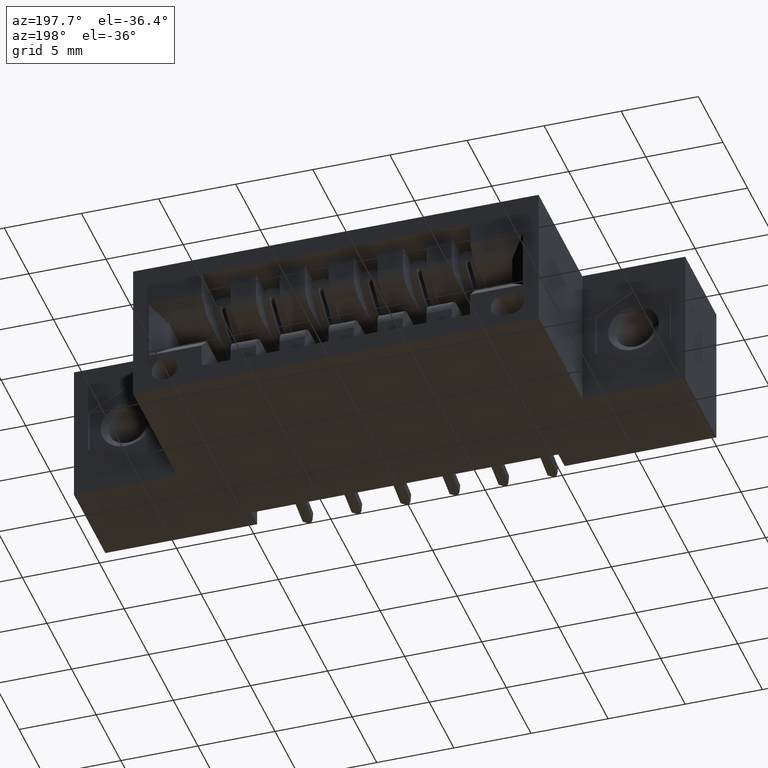
[diagram: clean part render]
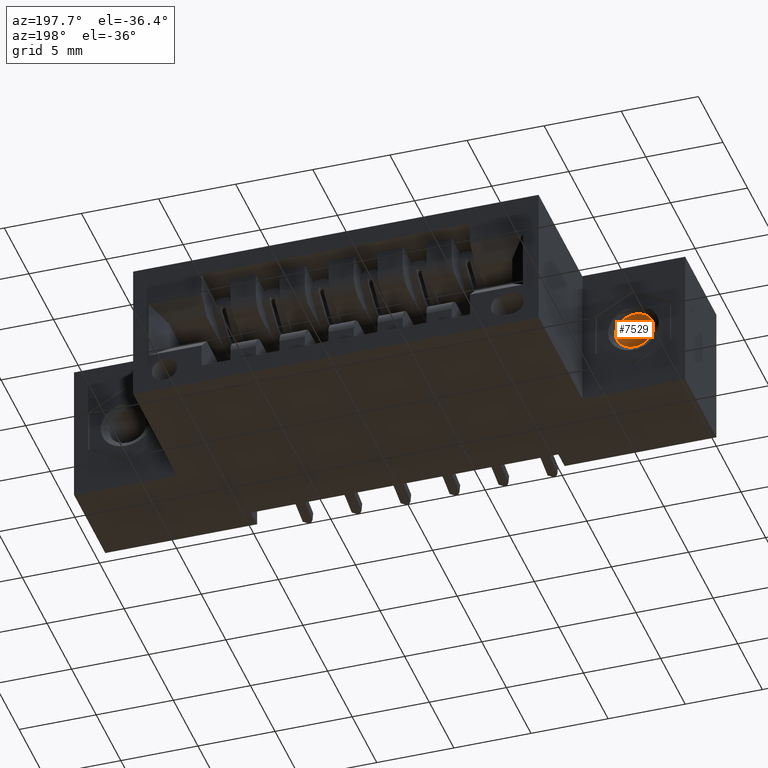
[diagram: same view with one face highlighted and labeled with its STEP entity id]
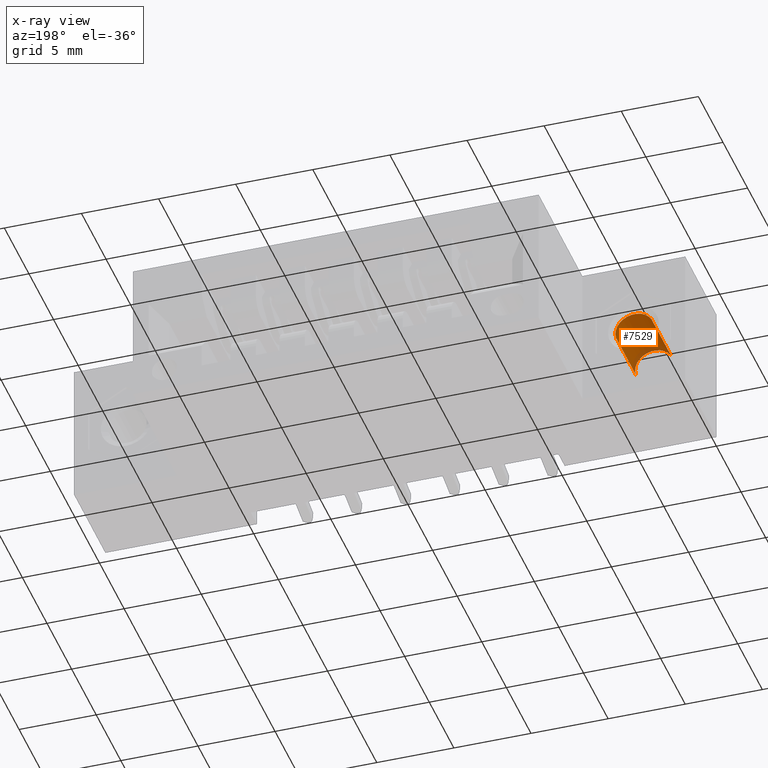
[diagram: x-ray of the same camera — body ghosted, the highlighted face saturated]
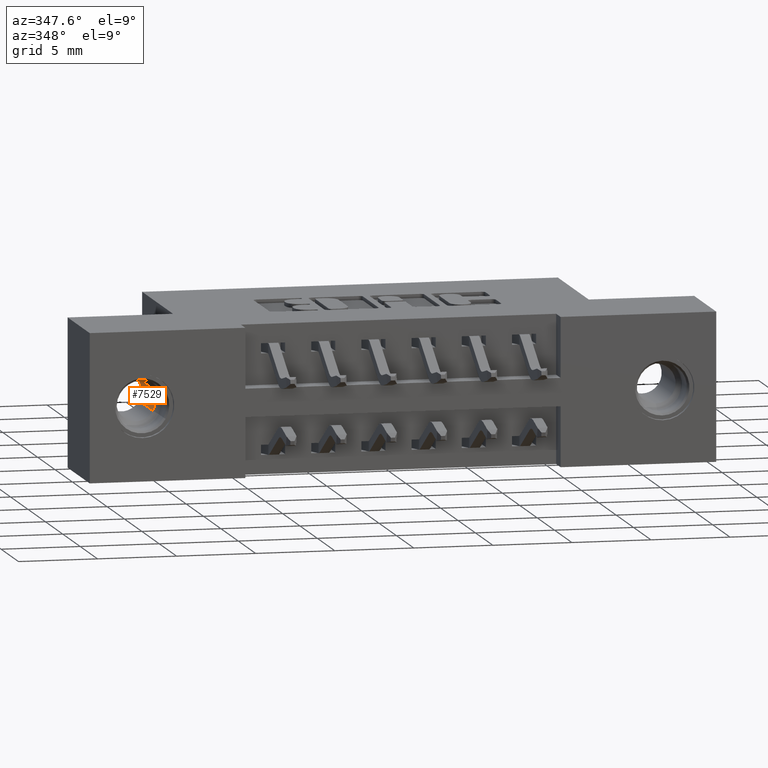
[diagram: same view with one face highlighted and labeled with its STEP entity id]
A machine part, auxiliary view. The second image highlights one B-rep face of the part: STEP entity #7529.
The next image is the same camera in x-ray: the body ghosted, the highlighted face saturated — about 12% of this face is hidden behind the body in this view.
A second angle (auxiliary view) of the same face is appended — the face is thin or edge-on in the first view.
In plain terms, the highlighted cylindrical surface (edge-blend (fillet) strip) has radius 1.25 mm, axis along (0, 1, 0).
Its self-contained STEP definition (entity closure, byte-faithful):
#390 = DIRECTION ( 'NONE',  ( 0.0000000000000000000, -1.000000000000000000, 0.0000000000000000000 ) ) ;
#496 = CARTESIAN_POINT ( 'NONE',  ( 2.310085507431578100E-017, 0.0000000000000000000, 0.04921259842519700600 ) ) ;
#645 = CARTESIAN_POINT ( 'NONE',  ( 2.310085507431576500E-017, 0.009114860549017462400, 0.04921259842519677700 ) ) ;
#1379 = AXIS2_PLACEMENT_3D ( 'NONE', #4238, #390, #6788 ) ;
#1425 = CARTESIAN_POINT ( 'NONE',  ( 6.714882044273396900E-018, 0.1667125984251968400, -0.04921259842519675600 ) ) ;
#2251 = DIRECTION ( 'NONE',  ( -0.0000000000000000000, -1.000000000000000000, -0.0000000000000000000 ) ) ;
#2436 = CIRCLE ( 'NONE', #8830, 0.04921259842519680500 ) ;
#2535 = LINE ( 'NONE', #8713, #7922 ) ;
#2602 = ORIENTED_EDGE ( 'NONE', *, *, #9136, .T. ) ;
#2800 = DIRECTION ( 'NONE',  ( 0.0000000000000000000, 0.0000000000000000000, 1.000000000000000000 ) ) ;
#2914 = VERTEX_POINT ( 'NONE', #645 ) ;
#3730 = DIRECTION ( 'NONE',  ( 0.0000000000000000000, 0.0000000000000000000, -1.000000000000000000 ) ) ;
#3777 = CARTESIAN_POINT ( 'NONE',  ( 1.707404996040164500E-017, 0.009114860549017462400, -0.04921259842519640900 ) ) ;
#3856 = ORIENTED_EDGE ( 'NONE', *, *, #4307, .F. ) ;
#3880 = CYLINDRICAL_SURFACE ( 'NONE', #1379, 0.04921259842519680500 ) ;
#3957 = CIRCLE ( 'NONE', #4370, 0.04921259842519661000 ) ;
#4238 = CARTESIAN_POINT ( 'NONE',  ( 1.707404996040164500E-017, 0.0000000000000000000, 2.048885995248197400E-016 ) ) ;
#4307 = EDGE_CURVE ( 'NONE', #8360, #2914, #9718, .T. ) ;
#4370 = AXIS2_PLACEMENT_3D ( 'NONE', #4542, #7622, #3730 ) ;
#4542 = CARTESIAN_POINT ( 'NONE',  ( 1.707404996040164500E-017, 0.009114860549017462400, 2.048885995248197400E-016 ) ) ;
#5496 = DIRECTION ( 'NONE',  ( 0.0000000000000000000, -1.000000000000000000, 0.0000000000000000000 ) ) ;
#6029 = ORIENTED_EDGE ( 'NONE', *, *, #8553, .T. ) ;
#6150 = VECTOR ( 'NONE', #5496, 39.37007874015748100 ) ;
#6625 = EDGE_CURVE ( 'NONE', #10144, #8360, #2436, .T. ) ;
#6788 = DIRECTION ( 'NONE',  ( 0.0000000000000000000, 0.0000000000000000000, -1.000000000000000000 ) ) ;
#6933 = CARTESIAN_POINT ( 'NONE',  ( 0.0000000000000000000, 0.1667125984251968400, 0.0000000000000000000 ) ) ;
#7529 = ADVANCED_FACE ( 'NONE', ( #7929 ), #3880, .F. ) ;
#7544 = ORIENTED_EDGE ( 'NONE', *, *, #6625, .F. ) ;
#7622 = DIRECTION ( 'NONE',  ( 0.0000000000000000000, -1.000000000000000000, 0.0000000000000000000 ) ) ;
#7922 = VECTOR ( 'NONE', #9685, 39.37007874015748100 ) ;
#7929 = FACE_OUTER_BOUND ( 'NONE', #9993, .T. ) ;
#8360 = VERTEX_POINT ( 'NONE', #9223 ) ;
#8553 = EDGE_CURVE ( 'NONE', #10144, #9538, #2535, .T. ) ;
#8713 = CARTESIAN_POINT ( 'NONE',  ( 1.707404996040164500E-017, 0.0000000000000000000, -0.04921259842519659600 ) ) ;
#8830 = AXIS2_PLACEMENT_3D ( 'NONE', #6933, #2251, #2800 ) ;
#9136 = EDGE_CURVE ( 'NONE', #9538, #2914, #3957, .T. ) ;
#9223 = CARTESIAN_POINT ( 'NONE',  ( 0.0000000000000000000, 0.1667125984251968400, 0.04921259842519680500 ) ) ;
#9538 = VERTEX_POINT ( 'NONE', #3777 ) ;
#9685 = DIRECTION ( 'NONE',  ( 0.0000000000000000000, -1.000000000000000000, 0.0000000000000000000 ) ) ;
#9718 = LINE ( 'NONE', #496, #6150 ) ;
#9993 = EDGE_LOOP ( 'NONE', ( #3856, #7544, #6029, #2602 ) ) ;
#10144 = VERTEX_POINT ( 'NONE', #1425 ) ;